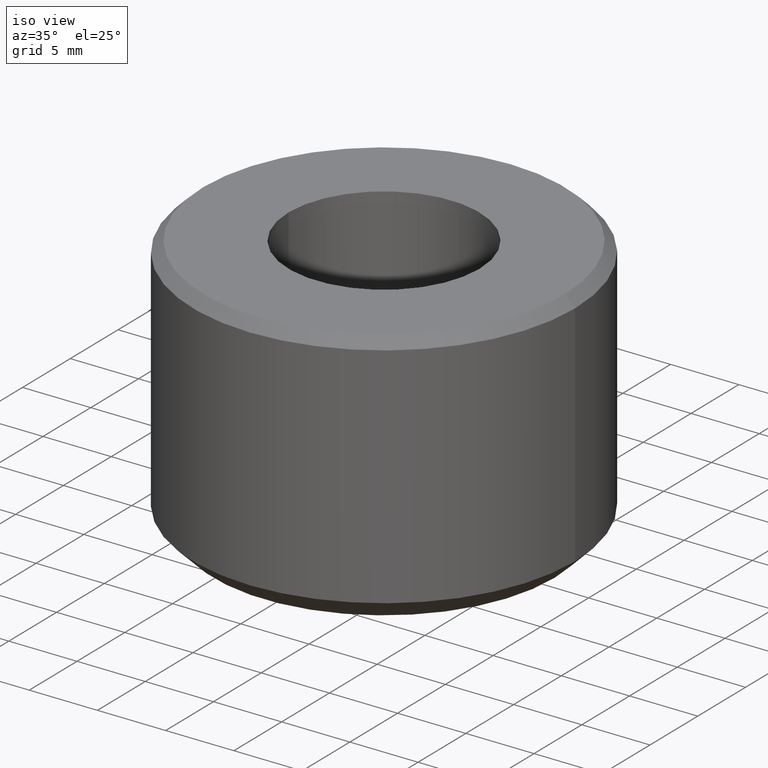
[diagram: clean part render]
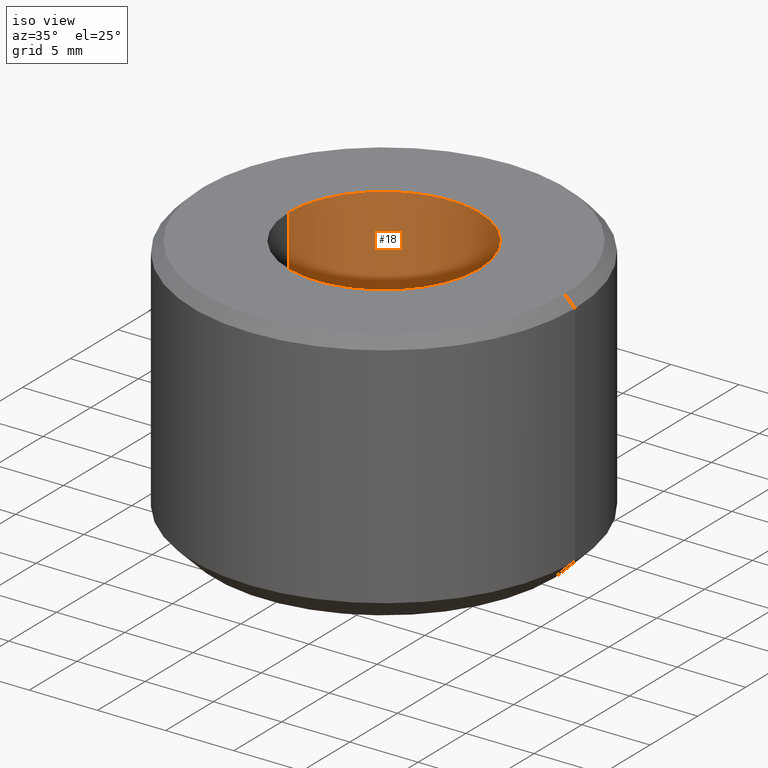
[diagram: same view with one face highlighted and labeled with its STEP entity id]
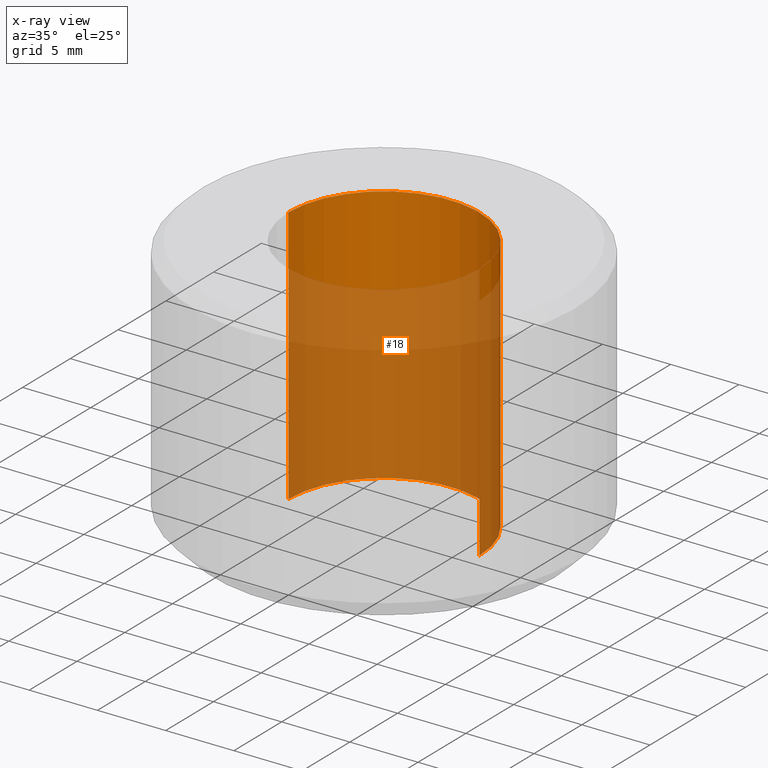
[diagram: x-ray of the same camera — body ghosted, the highlighted face saturated]
A machine part, iso view. The second image highlights one B-rep face of the part: STEP entity #18.
The next image is the same camera in x-ray: the body ghosted, the highlighted face saturated — about 71% of this face is hidden behind the body in this view.
In plain terms, the highlighted cylindrical surface (partial cylindrical patch) has radius 7 mm, axis along (-0, -0, 1).
Its self-contained STEP definition (entity closure, byte-faithful):
#7 = AXIS2_PLACEMENT_3D ( 'NONE', #55, #331, #99 ) ;
#18 = ADVANCED_FACE ( 'NONE', ( #126 ), #296, .F. ) ;
#28 = EDGE_CURVE ( 'NONE', #256, #136, #154, .T. ) ;
#30 = AXIS2_PLACEMENT_3D ( 'NONE', #208, #185, #274 ) ;
#36 = DIRECTION ( 'NONE',  ( -0.0000000000000000000, -0.0000000000000000000, 1.000000000000000000 ) ) ;
#39 = CARTESIAN_POINT ( 'NONE',  ( -6.999999999999999100, 8.572527594031472200E-016, 75.10608502361769500 ) ) ;
#48 = EDGE_LOOP ( 'NONE', ( #63, #103, #127, #57 ) ) ;
#55 = CARTESIAN_POINT ( 'NONE',  ( 0.0000000000000000000, 0.0000000000000000000, 75.10608502361769500 ) ) ;
#57 = ORIENTED_EDGE ( 'NONE', *, *, #228, .T. ) ;
#63 = ORIENTED_EDGE ( 'NONE', *, *, #267, .F. ) ;
#82 = CARTESIAN_POINT ( 'NONE',  ( -7.000000000000000900, 8.572527594031474200E-016, 2.220446049250313100E-013 ) ) ;
#93 = LINE ( 'NONE', #39, #205 ) ;
#99 = DIRECTION ( 'NONE',  ( 1.000000000000000000, 0.0000000000000000000, 0.0000000000000000000 ) ) ;
#102 = EDGE_CURVE ( 'NONE', #256, #164, #297, .T. ) ;
#103 = ORIENTED_EDGE ( 'NONE', *, *, #28, .F. ) ;
#114 = VECTOR ( 'NONE', #212, 1000.000000000000000 ) ;
#126 = FACE_OUTER_BOUND ( 'NONE', #48, .T. ) ;
#127 = ORIENTED_EDGE ( 'NONE', *, *, #102, .T. ) ;
#136 = VERTEX_POINT ( 'NONE', #82 ) ;
#154 = CIRCLE ( 'NONE', #30, 7.000000000000000000 ) ;
#164 = VERTEX_POINT ( 'NONE', #193 ) ;
#185 = DIRECTION ( 'NONE',  ( -0.0000000000000000000, -0.0000000000000000000, 1.000000000000000000 ) ) ;
#186 = DIRECTION ( 'NONE',  ( -0.0000000000000000000, -0.0000000000000000000, 1.000000000000000000 ) ) ;
#193 = CARTESIAN_POINT ( 'NONE',  ( 6.999999999999997300, 0.0000000000000000000, 19.00000000000057200 ) ) ;
#205 = VECTOR ( 'NONE', #36, 1000.000000000000000 ) ;
#208 = CARTESIAN_POINT ( 'NONE',  ( 0.0000000000000000000, 0.0000000000000000000, 2.220446049250313100E-013 ) ) ;
#212 = DIRECTION ( 'NONE',  ( -0.0000000000000000000, -0.0000000000000000000, 1.000000000000000000 ) ) ;
#215 = CARTESIAN_POINT ( 'NONE',  ( 7.000000000000000000, 0.0000000000000000000, 2.220446049250313100E-013 ) ) ;
#228 = EDGE_CURVE ( 'NONE', #164, #275, #329, .T. ) ;
#244 = CARTESIAN_POINT ( 'NONE',  ( 0.0000000000000000000, 0.0000000000000000000, 19.00000000000057200 ) ) ;
#256 = VERTEX_POINT ( 'NONE', #215 ) ;
#264 = AXIS2_PLACEMENT_3D ( 'NONE', #244, #186, #303 ) ;
#267 = EDGE_CURVE ( 'NONE', #136, #275, #93, .T. ) ;
#274 = DIRECTION ( 'NONE',  ( 1.000000000000000000, 0.0000000000000000000, 0.0000000000000000000 ) ) ;
#275 = VERTEX_POINT ( 'NONE', #321 ) ;
#296 = CYLINDRICAL_SURFACE ( 'NONE', #7, 6.999999999999999100 ) ;
#297 = LINE ( 'NONE', #299, #114 ) ;
#299 = CARTESIAN_POINT ( 'NONE',  ( 6.999999999999999100, 0.0000000000000000000, 75.10608502361769500 ) ) ;
#303 = DIRECTION ( 'NONE',  ( 1.000000000000000000, 0.0000000000000000000, 0.0000000000000000000 ) ) ;
#321 = CARTESIAN_POINT ( 'NONE',  ( -6.999999999999997300, 8.572527594031471200E-016, 19.00000000000057200 ) ) ;
#329 = CIRCLE ( 'NONE', #264, 6.999999999999997300 ) ;
#331 = DIRECTION ( 'NONE',  ( -0.0000000000000000000, -0.0000000000000000000, 1.000000000000000000 ) ) ;